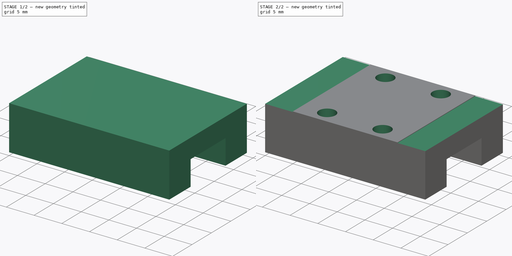
[diagram: build sequence overview — one tinted view per stage of 2, left to right]
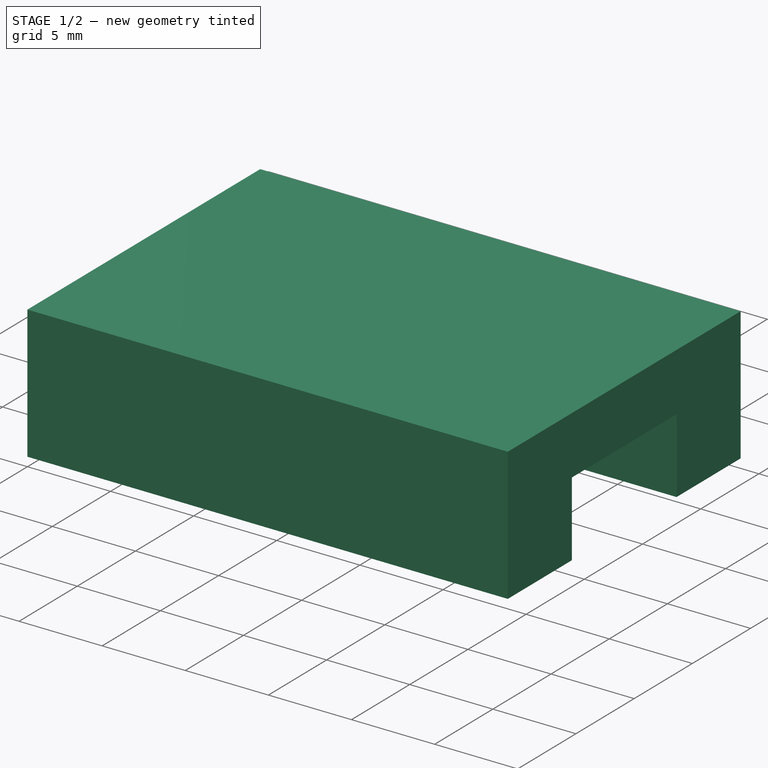
[diagram: stage 1 of 2 — iso view after this stage's code; geometry added in this stage tinted green]
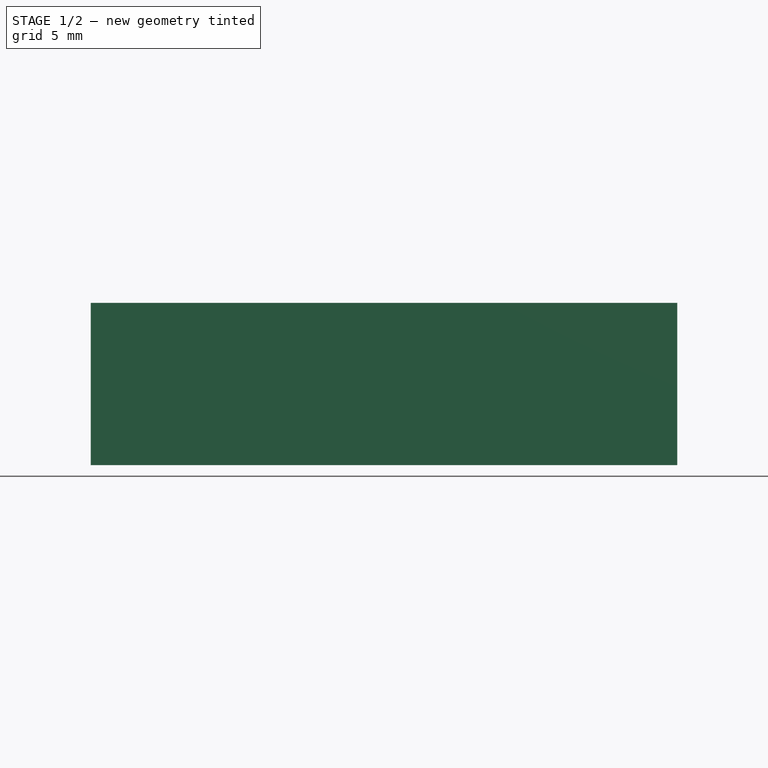
[diagram: stage 1 of 2 — front view after this stage's code; geometry added in this stage tinted green]
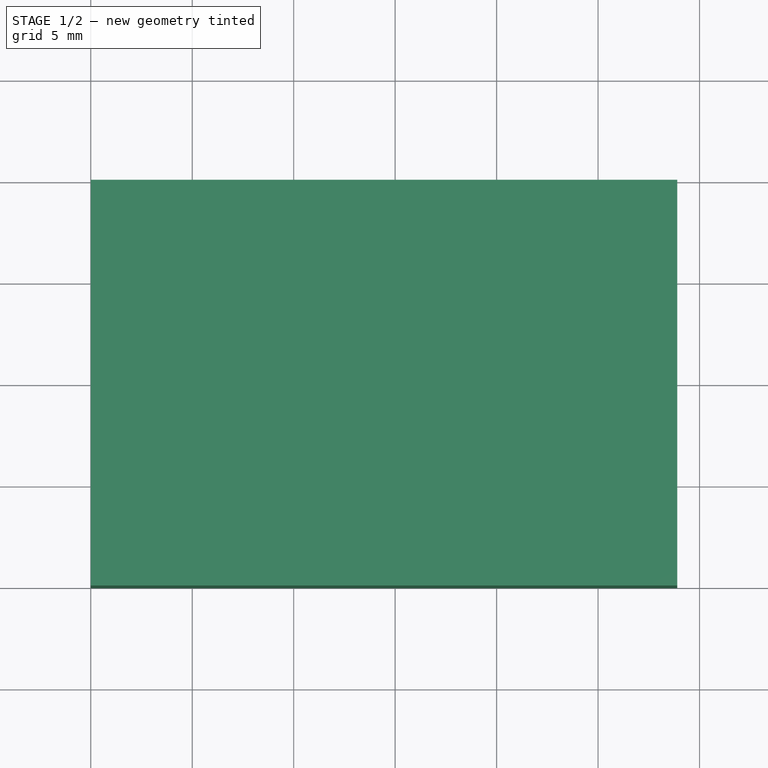
[diagram: stage 1 of 2 — top view after this stage's code; geometry added in this stage tinted green]
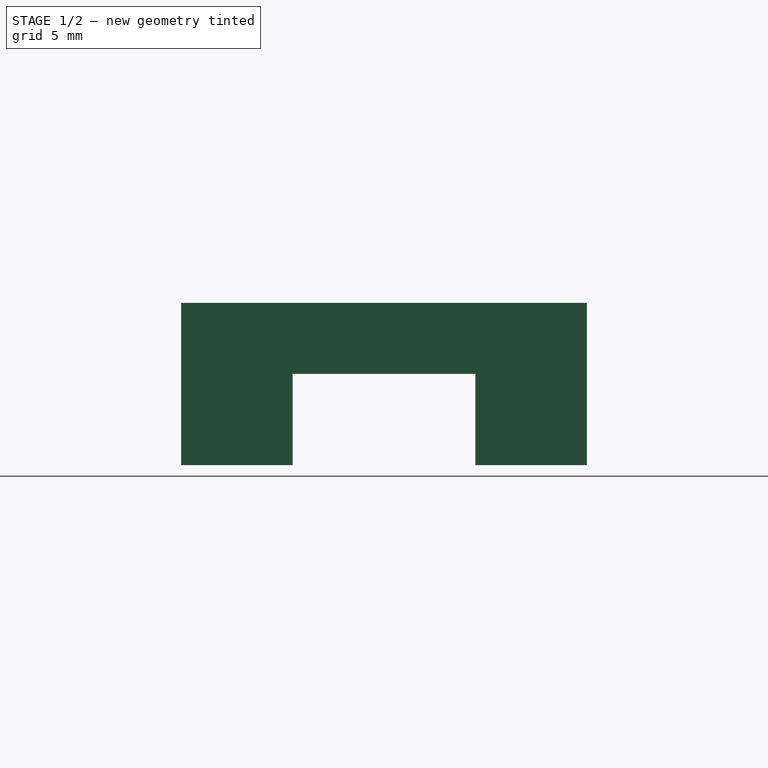
[diagram: stage 1 of 2 — right view after this stage's code; geometry added in this stage tinted green]
FCSTD DOCUMENT  (FreeCAD 0.21R33668 +26 (Git))
Label: mgn9c_slide
License: All rights reserved
LicenseURL: http://en.wikipedia.org/wiki/All_rights_reserved
objects: Sketcher::SketchObject×4, PartDesign::Pocket×3, App::Link×1, PartDesign::Pad×1, PartDesign::Body×1
note: 13 computed .brp shape members not serialized (recipe doc carries the construction recipe); baked Part::Feature solids carry a one-line shape summary decoded from their .brp
EXTERNAL_REF file=Datasheet.FCStd obj=Spreadsheet

FEATURE [App::Link] Link  label="mgn9c"
  LinkedObject = -> <external Datasheet.FCStd>#Spreadsheet
FEATURE [Sketcher::SketchObject] Sketch002
  FullyConstrained = true
  MapMode = 5
  Support = -> [XY_Plane001]
  expr: Constraints[10] = <<mgn9c>>.Dim_W
  expr: Constraints[9] = <<mgn9c>>.Dim_L
  sketch-geometry (4):
    g0: LineSegment StartX=0 StartY=0 StartZ=0 EndX=28.9 EndY=0 EndZ=0
    g1: LineSegment StartX=28.9 StartY=0 StartZ=0 EndX=28.9 EndY=20 EndZ=0
    g2: LineSegment StartX=28.9 StartY=20 StartZ=0 EndX=0 EndY=20 EndZ=0
    g3: LineSegment StartX=0 StartY=20 StartZ=0 EndX=0 EndY=0 EndZ=0
  constraints (11):
    c: Coincident(g0,g1)
    c: Coincident(g1,g2)
    c: Coincident(g2,g3)
    c: Coincident(g3,g0)
    c: Horizontal(g0)
    c: Horizontal(g2)
    c: Vertical(g1)
    c: Vertical(g3)
    c: Coincident(g0,g-1)
    c: DistanceX(g2,g2) = 28.9
    c: DistanceY(g1,g1) = 20
FEATURE [PartDesign::Pad] Pad001
  Direction = (0,0,1)
  Length = 8
  Length2 = 10
  Profile = -> Sketch002
  ReferenceAxis = -> Sketch002 [N_Axis]
  Type = 0
  expr: Length = <<mgn9c>>.Dim_H - <<mgn9c>>.Dim_H1
FEATURE [Sketcher::SketchObject] Sketch003
  ExternalGeometry = -> [Pad001]
  FullyConstrained = true
  MapMode = 5
  Placement = pos=(0,0,0) rot=(0.57735,-0.57735,-0.57735;2.0944rad)
  Support = -> [Pad001]
  expr: Constraints[10] = <<mgn9c>>.Dim_Hr - <<mgn9c>>.Dim_H1
  expr: Constraints[8] = <<mgn9c>>.Dim_N
  expr: Constraints[9] = <<mgn9c>>.Dim_N
  sketch-geometry (4):
    g0: LineSegment StartX=-14.5 StartY=0 StartZ=0 EndX=-5.5 EndY=0 EndZ=0
    g1: LineSegment StartX=-5.5 StartY=0 StartZ=0 EndX=-5.5 EndY=4.5 EndZ=0
    g2: LineSegment StartX=-5.5 StartY=4.5 StartZ=0 EndX=-14.5 EndY=4.5 EndZ=0
    g3: LineSegment StartX=-14.5 StartY=4.5 StartZ=0 EndX=-14.5 EndY=0 EndZ=0
  constraints (12):
    c: Coincident(g0,g1)
    c: Coincident(g1,g2)
    c: Coincident(g2,g3)
    c: Coincident(g3,g0)
    c: Horizontal(g0)
    c: Horizontal(g2)
    c: Vertical(g1)
    c: Vertical(g3)
    c: DistanceX(g-5,g0) = 5.5
    c: DistanceX(g0,g-6) = 5.5
    c: DistanceY(g1,g1) = 4.5
    c: PointOnObject(g0,g-5)
FEATURE [PartDesign::Pocket] Pocket001
  BaseFeature = -> Pad001
  Direction = (1,0,0)
  Length = 28.9
  Length2 = 5
  Profile = -> Sketch003
  ReferenceAxis = -> Sketch003 [N_Axis]
  Type = 0
  expr: Length = <<mgn9c>>.Dim_L
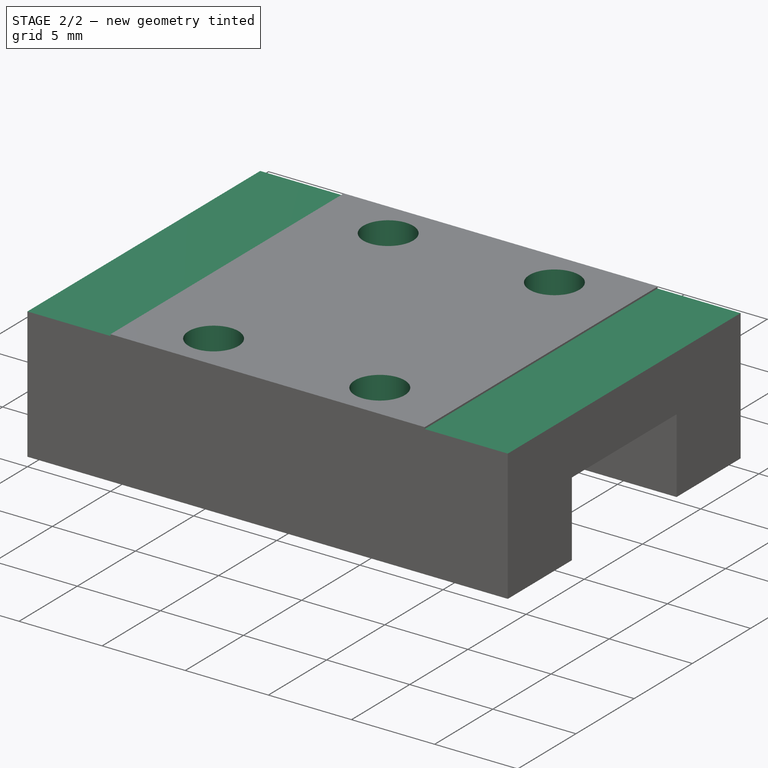
[diagram: stage 2 of 2 — iso view after this stage's code; geometry added in this stage tinted green]
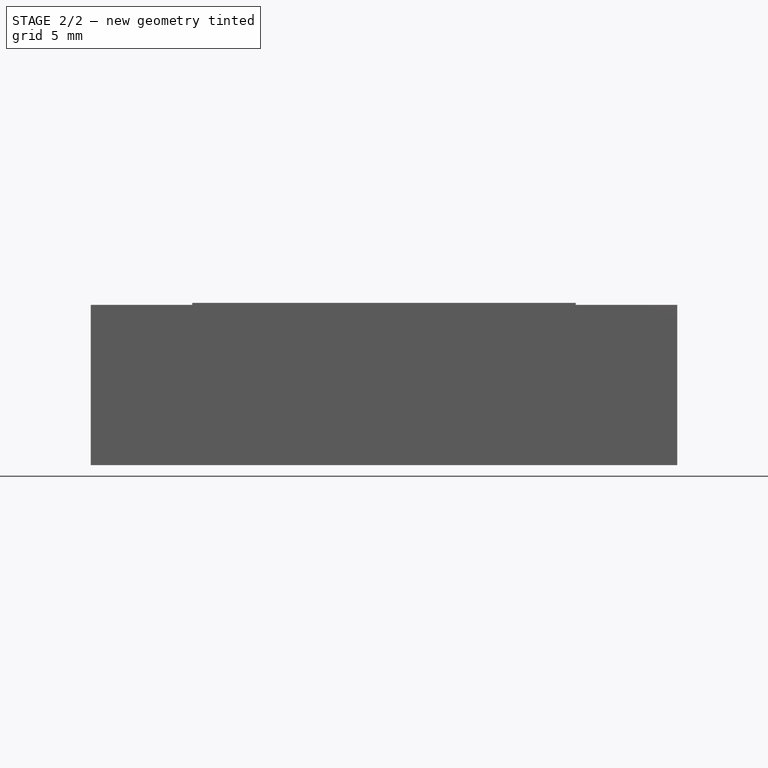
[diagram: stage 2 of 2 — front view after this stage's code; geometry added in this stage tinted green]
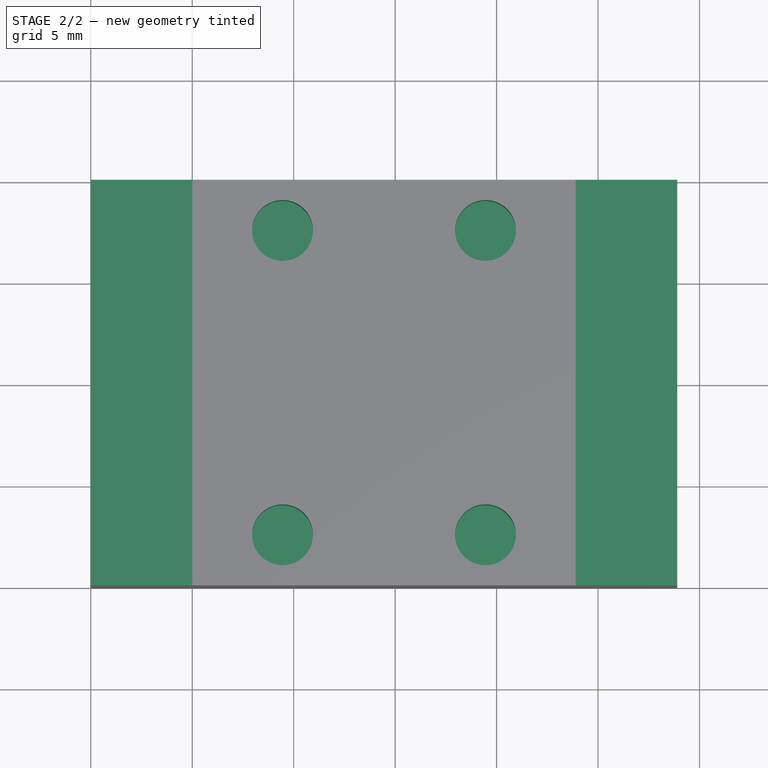
[diagram: stage 2 of 2 — top view after this stage's code; geometry added in this stage tinted green]
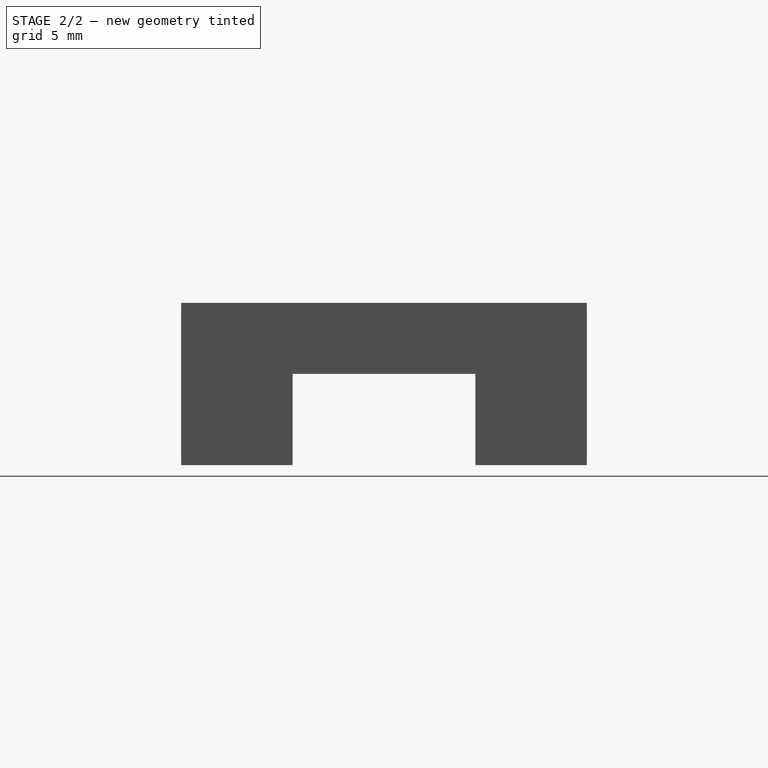
[diagram: stage 2 of 2 — right view after this stage's code; geometry added in this stage tinted green]
FEATURE [Sketcher::SketchObject] Sketch004
  ExternalGeometry = -> [Pocket001]
  FullyConstrained = true
  MapMode = 5
  Placement = pos=(0,0,8) rot=(0,0,1;0rad)
  Support = -> [Pocket001]
  expr: Constraints[17] = 3
  expr: Constraints[18] = 3
  expr: Constraints[19] = 3
  expr: Constraints[20] = 3
  expr: Constraints[8] = <<mgn9c>>.Dim_C
  expr: Constraints[9] = <<mgn9c>>.Dim_B
  sketch-geometry (9):
    g0: LineSegment StartX=9.45 StartY=17.5 StartZ=0 EndX=19.45 EndY=17.5 EndZ=0
    g1: LineSegment StartX=19.45 StartY=17.5 StartZ=0 EndX=19.45 EndY=2.5 EndZ=0
    g2: LineSegment StartX=19.45 StartY=2.5 StartZ=0 EndX=9.45 EndY=2.5 EndZ=0
    g3: LineSegment StartX=9.45 StartY=2.5 StartZ=0 EndX=9.45 EndY=17.5 EndZ=0
    g4: GeomPoint X=14.45 Y=10 Z=0
    g5: Circle CenterX=9.45 CenterY=17.5 CenterZ=0 NormalX=0 NormalY=0 NormalZ=1 AngleXU=0 Radius=1.5
    g6: Circle CenterX=19.45 CenterY=17.5 CenterZ=0 NormalX=0 NormalY=0 NormalZ=1 AngleXU=0 Radius=1.5
    g7: Circle CenterX=19.45 CenterY=2.5 CenterZ=0 NormalX=0 NormalY=0 NormalZ=1 AngleXU=0 Radius=1.5
    g8: Circle CenterX=9.45 CenterY=2.5 CenterZ=0 NormalX=0 NormalY=0 NormalZ=1 AngleXU=0 Radius=1.5
  constraints (21):
    c: Coincident(g0,g1)
    c: Coincident(g1,g2)
    c: Coincident(g2,g3)
    c: Coincident(g3,g0)
    c: Horizontal(g0)
    c: Horizontal(g2)
    c: Vertical(g1)
    c: Vertical(g3)
    c: DistanceX(g0,g0) = 10
    c: DistanceY(g1,g1) = 15
    c: DistanceY(g-4,g2) = 2.5
    c: Symmetric(g-3,g-4,g4)
    c: Symmetric(g1,g0,g4)
    c: Coincident(g5,g0)
    c: Coincident(g6,g0)
    c: Coincident(g7,g1)
    c: Coincident(g8,g2)
    c: Diameter(g8) = 3
    c: Diameter(g7) = 3
    c: Diameter(g6) = 3
    c: Diameter(g5) = 3
FEATURE [PartDesign::Pocket] Pocket002
  BaseFeature = -> Pocket001
  Direction = (0,0,-1)
  Length = 3
  Length2 = 5
  Profile = -> Sketch004
  ReferenceAxis = -> Sketch004 [N_Axis]
  Type = 0
FEATURE [Sketcher::SketchObject] Sketch005
  ExternalGeometry = -> [Pocket002]
  FullyConstrained = true
  MapMode = 5
  Placement = pos=(0,0,8) rot=(0,0,1;0rad)
  Support = -> [Pocket002]
  expr: Constraints[19] = <<mgn9c>>.Dim_L1
  sketch-geometry (9):
    g0: LineSegment StartX=0 StartY=20 StartZ=0 EndX=5 EndY=20 EndZ=0
    g1: LineSegment StartX=5 StartY=20 StartZ=0 EndX=5 EndY=0 EndZ=0
    g2: LineSegment StartX=5 StartY=0 StartZ=0 EndX=0 EndY=0 EndZ=0
    g3: LineSegment StartX=0 StartY=0 StartZ=0 EndX=0 EndY=20 EndZ=0
    g4: LineSegment StartX=28.9 StartY=0 StartZ=0 EndX=23.9 EndY=0 EndZ=0
    g5: LineSegment StartX=23.9 StartY=0 StartZ=0 EndX=23.9 EndY=20 EndZ=0
    g6: LineSegment StartX=23.9 StartY=20 StartZ=0 EndX=28.9 EndY=20 EndZ=0
    g7: LineSegment StartX=28.9 StartY=20 StartZ=0 EndX=28.9 EndY=0 EndZ=0
    g8: GeomPoint X=14.45 Y=0 Z=0
  constraints (22):
    c: Coincident(g0,g1)
    c: Coincident(g1,g2)
    c: Coincident(g2,g3)
    c: Coincident(g3,g0)
    c: Horizontal(g0)
    c: Horizontal(g2)
    c: Vertical(g1)
    c: Vertical(g3)
    c: Coincident(g0,g-3)
    c: PointOnObject(g1,g-1)
    c: Coincident(g4,g5)
    c: Coincident(g5,g6)
    c: Coincident(g6,g7)
    c: Coincident(g7,g4)
    c: Horizontal(g6)
    c: Vertical(g5)
    c: Vertical(g7)
    c: Symmetric(g2,g-4,g8)
    c: Symmetric(g4,g1,g8)
    c: DistanceX(g1,g4) = 18.9
    c: PointOnObject(g5,g-5)
    c: Coincident(g4,g-4)
FEATURE [PartDesign::Pocket] Pocket003
  BaseFeature = -> Pocket002
  Direction = (0,0,-1)
  Length = 0.1
  Length2 = 5
  Profile = -> Sketch005
  ReferenceAxis = -> Sketch005 [N_Axis]
  Type = 0
FEATURE [PartDesign::Body] Body001  label="Slide"
  Group = -> [Sketch002,Pad001,Sketch003,Pocket001,Sketch004,Pocket002,Sketch005,Pocket003]
  Origin = -> Origin001
  Tip = -> Pocket003
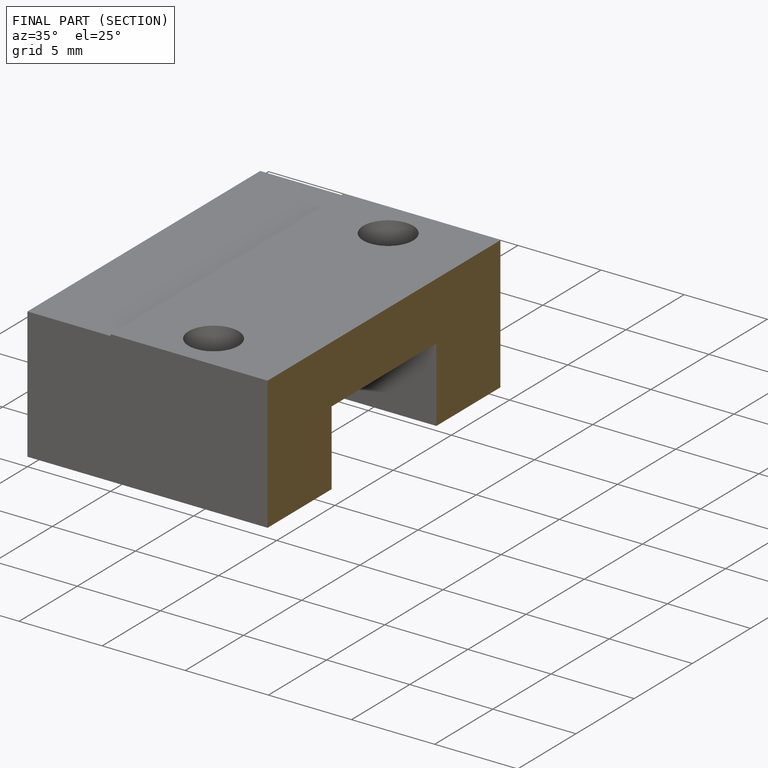
[diagram: finished part — half-section view (interior)]
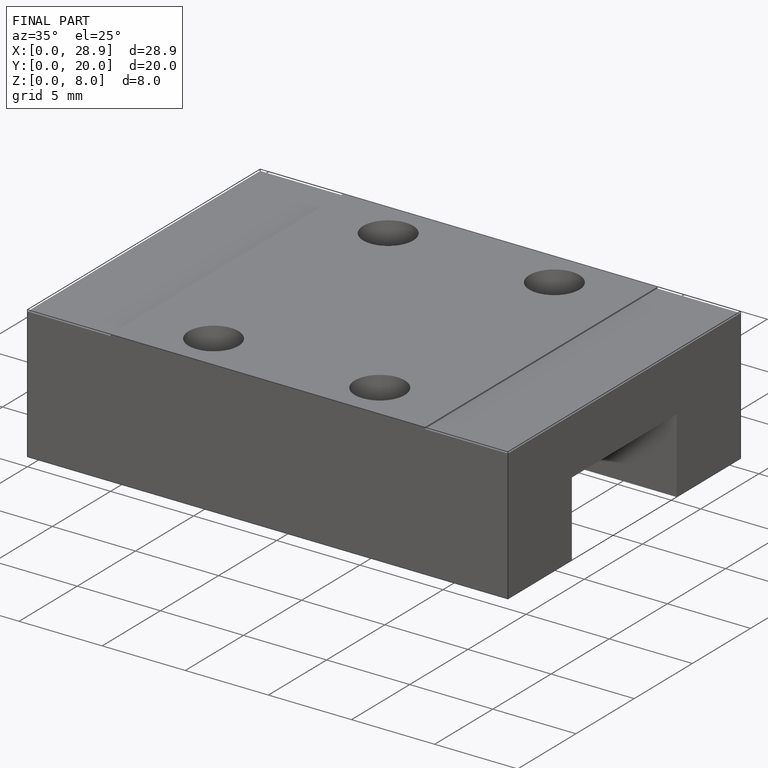
[diagram: finished part — iso view with bounding-box wireframe]
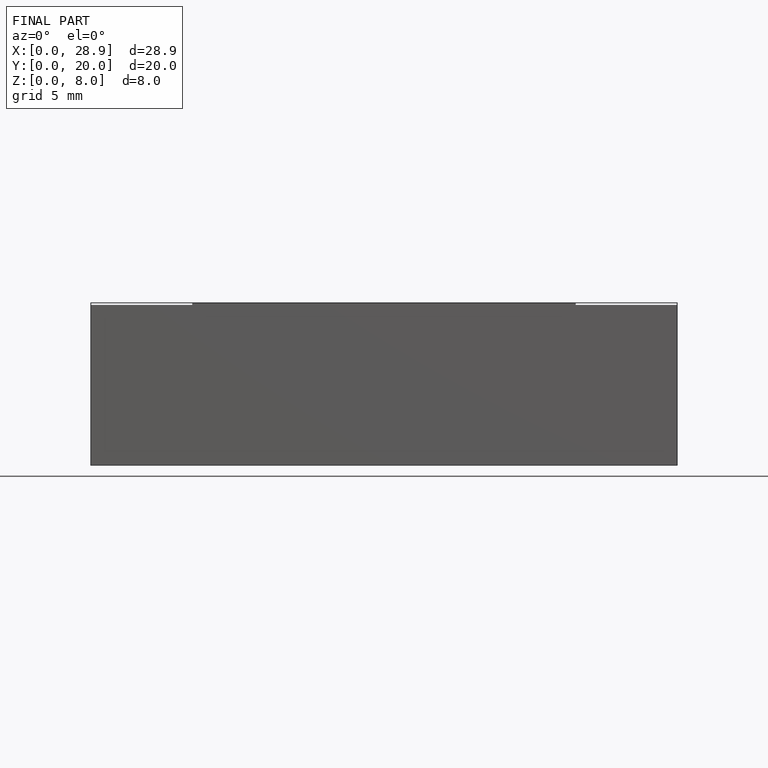
[diagram: finished part — front view with bounding-box wireframe]
